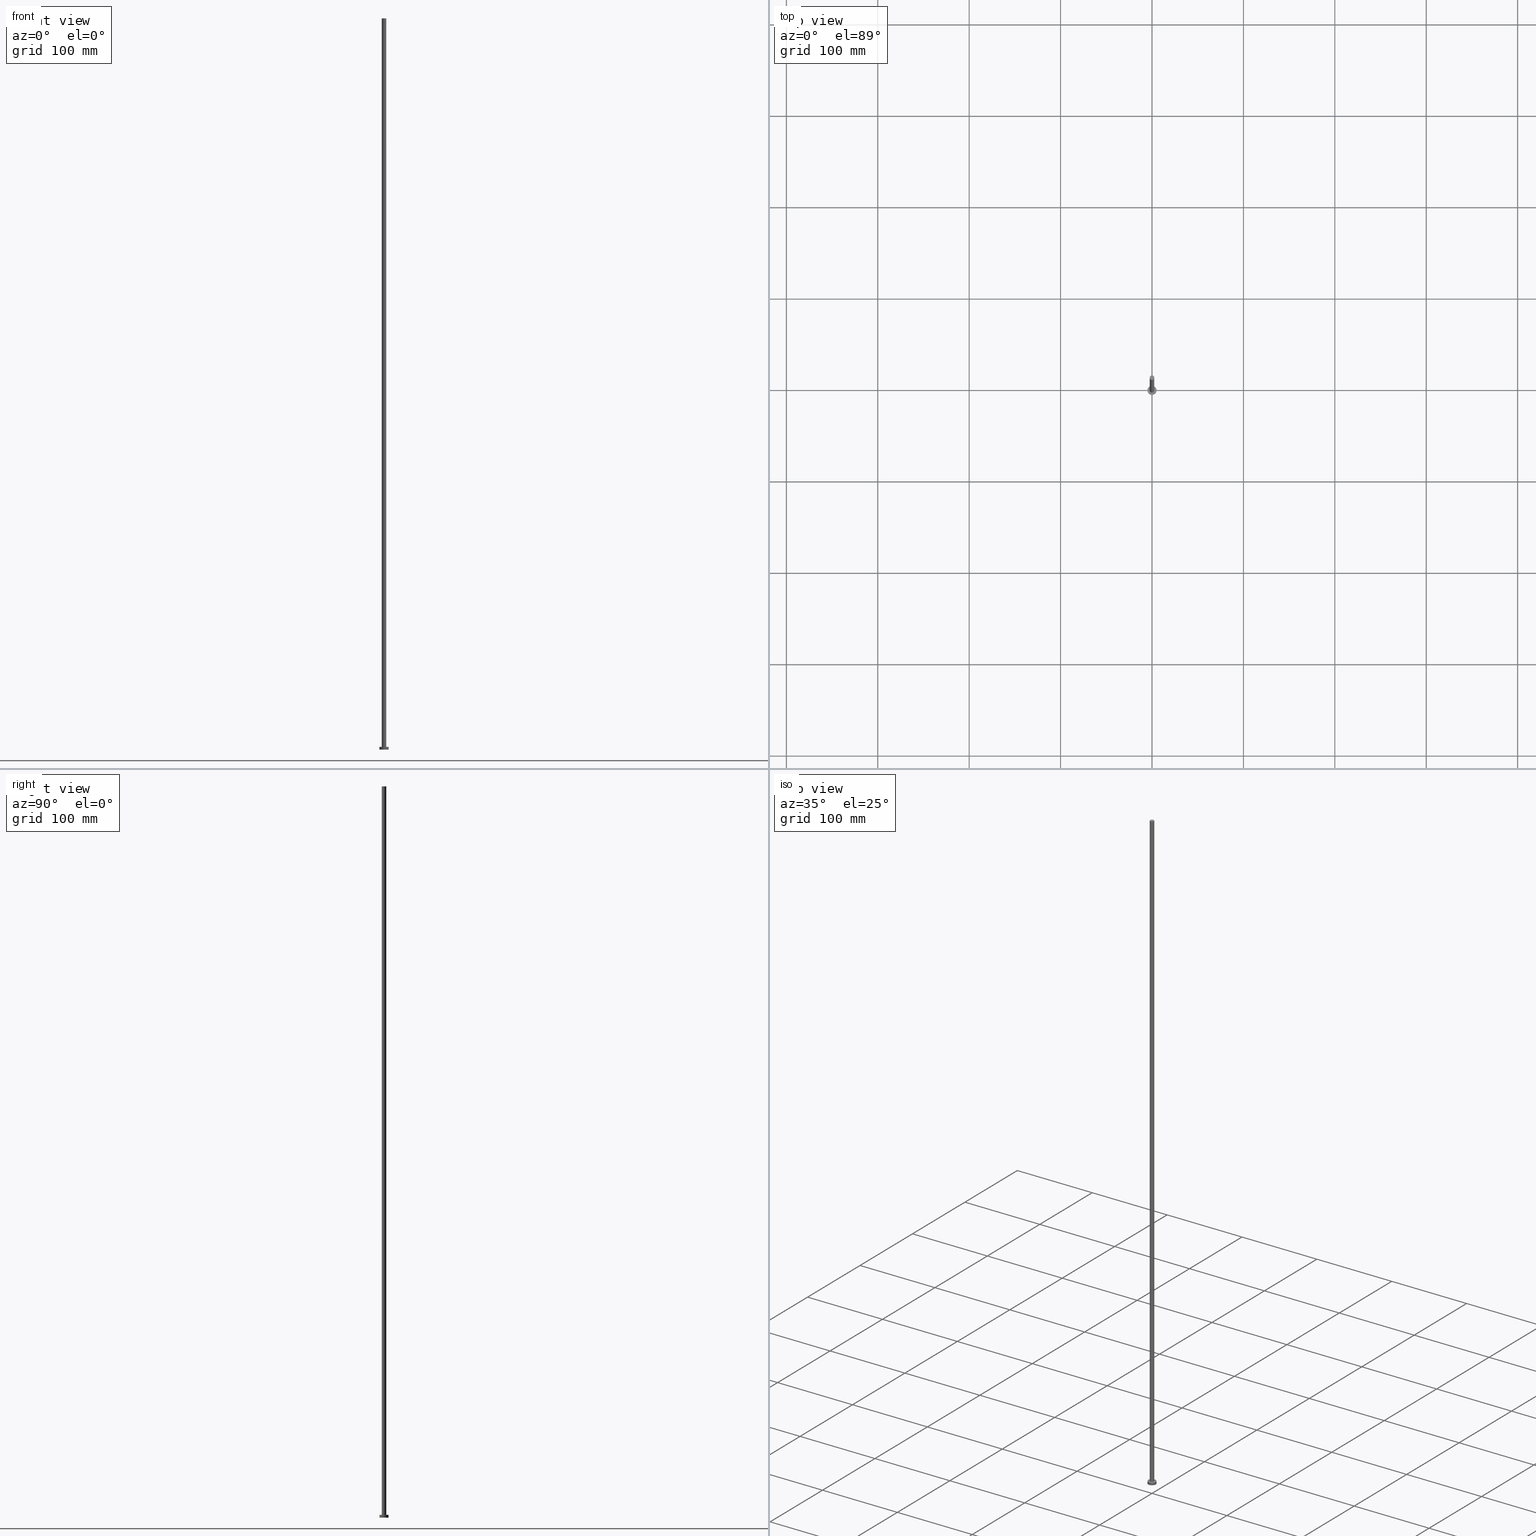
[diagram: canonical four-view strip — front | top / right | iso, engineering-drawing reading convention]
A machine part, canonical four-view strip (front | top / right | iso — engineering-drawing reading convention). The complete STEP part file that produces these views, byte-faithful:
ISO-10303-21;
HEADER;
FILE_DESCRIPTION (( 'STEP AP203' ),
    '1' );
FILE_NAME ('afb6.STEP',
    '2026-02-06T12:41:12',
    ( '' ),
    ( '' ),
    'SwSTEP 2.0',
    'SolidWorks 2019',
    '' );
FILE_SCHEMA (( 'CONFIG_CONTROL_DESIGN' ));
ENDSEC;

DATA;
#1 = ORIENTED_EDGE ( 'NONE', *, *, #185, .T. ) ;
#2 = AXIS2_PLACEMENT_3D ( 'NONE', #191, #85, #42 ) ;
#3 = ADVANCED_FACE ( 'NONE', ( #188 ), #149, .T. ) ;
#4 = CARTESIAN_POINT ( 'NONE',  ( -5.000000000000000000, 0.000000000000000000, 0.000000000000000000 ) ) ;
#5 = DIRECTION ( 'NONE',  ( -0.000000000000000000, -0.000000000000000000, -1.000000000000000000 ) ) ;
#6 = DIRECTION ( 'NONE',  ( 0.000000000000000000, 0.000000000000000000, 1.000000000000000000 ) ) ;
#7 = FACE_OUTER_BOUND ( 'NONE', #55, .T. ) ;
#8 = CC_DESIGN_SECURITY_CLASSIFICATION ( #137, ( #72 ) ) ;
#9 = EDGE_CURVE ( 'NONE', #120, #87, #92, .T. ) ;
#10 = DIRECTION ( 'NONE',  ( 0.000000000000000000, 0.000000000000000000, 1.000000000000000000 ) ) ;
#11 = DIRECTION ( 'NONE',  ( 0.000000000000000000, 0.000000000000000000, 1.000000000000000000 ) ) ;
#12 = DIRECTION ( 'NONE',  ( 0.000000000000000000, 0.000000000000000000, 1.000000000000000000 ) ) ;
#13 = COORDINATED_UNIVERSAL_TIME_OFFSET ( 1, 0, .AHEAD. ) ;
#14 = CC_DESIGN_PERSON_AND_ORGANIZATION_ASSIGNMENT ( #140, #125, ( #72 ) ) ;
#15 = DIRECTION ( 'NONE',  ( 0.000000000000000000, 0.000000000000000000, 1.000000000000000000 ) ) ;
#16 = CC_DESIGN_APPROVAL ( #54, ( #72 ) ) ;
#17 = EDGE_LOOP ( 'NONE', ( #243, #244, #220, #76 ) ) ;
#18 = PRODUCT ( 'afb6', 'afb6', '', ( #139 ) ) ;
#19 = ORIENTED_EDGE ( 'NONE', *, *, #32, .F. ) ;
#20 = PERSON_AND_ORGANIZATION ( #222, #134 ) ;
#21 = APPROVAL_PERSON_ORGANIZATION ( #36, #143, #165 ) ;
#22 = DATE_TIME_ROLE ( 'classification_date' ) ;
#23 = CARTESIAN_POINT ( 'NONE',  ( 0.000000000000000000, 0.000000000000000000, 3.000000000000000000 ) ) ;
#24 = ADVANCED_FACE ( 'NONE', ( #223 ), #209, .T. ) ;
#25 = LINE ( 'NONE', #152, #234 ) ;
#26 = CARTESIAN_POINT ( 'NONE',  ( 0.000000000000000000, 0.000000000000000000, 800.0000000000000000 ) ) ;
#27 = CARTESIAN_POINT ( 'NONE',  ( 0.000000000000000000, 0.000000000000000000, 800.0000000000000000 ) ) ;
#28 = CARTESIAN_POINT ( 'NONE',  ( 0.000000000000000000, 0.000000000000000000, 3.000000000000000000 ) ) ;
#29 = PRODUCT_DEFINITION_SHAPE ( 'NONE', 'NONE',  #129 ) ;
#30 = CARTESIAN_POINT ( 'NONE',  ( 0.000000000000000000, 0.000000000000000000, 0.000000000000000000 ) ) ;
#31 = AXIS2_PLACEMENT_3D ( 'NONE', #179, #68, #232 ) ;
#32 = EDGE_CURVE ( 'NONE', #154, #120, #25, .T. ) ;
#33 = VERTEX_POINT ( 'NONE', #249 ) ;
#34 = COORDINATED_UNIVERSAL_TIME_OFFSET ( 1, 0, .AHEAD. ) ;
#35 = VERTEX_POINT ( 'NONE', #105 ) ;
#36 = PERSON_AND_ORGANIZATION ( #222, #134 ) ;
#37 = EDGE_LOOP ( 'NONE', ( #46, #155 ) ) ;
#38 = ORIENTED_EDGE ( 'NONE', *, *, #49, .F. ) ;
#39 = CARTESIAN_POINT ( 'NONE',  ( 0.000000000000000000, 0.000000000000000000, 800.0000000000000000 ) ) ;
#40 = PLANE ( 'NONE',  #135 ) ;
#41 = CARTESIAN_POINT ( 'NONE',  ( 0.000000000000000000, 0.000000000000000000, 0.000000000000000000 ) ) ;
#42 = DIRECTION ( 'NONE',  ( 1.000000000000000000, 0.000000000000000000, 0.000000000000000000 ) ) ;
#43 = CYLINDRICAL_SURFACE ( 'NONE', #79, 2.500000000000000000 ) ;
#44 = DIRECTION ( 'NONE',  ( -0.000000000000000000, -0.000000000000000000, -1.000000000000000000 ) ) ;
#45 = FACE_OUTER_BOUND ( 'NONE', #37, .T. ) ;
#46 = ORIENTED_EDGE ( 'NONE', *, *, #147, .T. ) ;
#47 = AXIS2_PLACEMENT_3D ( 'NONE', #39, #128, #173 ) ;
#48 = CALENDAR_DATE ( 2026, 6, 2 ) ;
#49 = EDGE_CURVE ( 'NONE', #35, #239, #101, .T. ) ;
#50 = PERSON_AND_ORGANIZATION_ROLE ( 'creator' ) ;
#51 = APPROVAL_PERSON_ORGANIZATION ( #111, #199, #196 ) ;
#52 = EDGE_CURVE ( 'NONE', #35, #126, #56, .T. ) ;
#53 = LOCAL_TIME ( 13, 41, 12.00000000000000000, #193 ) ;
#54 = APPROVAL ( #162, 'NEUR�EN�' ) ;
#55 = EDGE_LOOP ( 'NONE', ( #141, #166 ) ) ;
#56 = CIRCLE ( 'NONE', #96, 2.500000000000000000 ) ;
#57 = EDGE_LOOP ( 'NONE', ( #144, #254 ) ) ;
#58 = DIRECTION ( 'NONE',  ( 1.000000000000000000, 0.000000000000000000, 0.000000000000000000 ) ) ;
#59 = DIRECTION ( 'NONE',  ( -0.000000000000000000, -0.000000000000000000, -1.000000000000000000 ) ) ;
#60 = DIRECTION ( 'NONE',  ( -0.000000000000000000, -0.000000000000000000, -1.000000000000000000 ) ) ;
#61 = EDGE_LOOP ( 'NONE', ( #77, #100 ) ) ;
#62 = DIRECTION ( 'NONE',  ( -0.000000000000000000, -0.000000000000000000, -1.000000000000000000 ) ) ;
#63 = CARTESIAN_POINT ( 'NONE',  ( 0.000000000000000000, 0.000000000000000000, 3.000000000000000000 ) ) ;
#64 = CARTESIAN_POINT ( 'NONE',  ( 5.000000000000000000, 6.123233995736766282E-16, 0.000000000000000000 ) ) ;
#65 = DIRECTION ( 'NONE',  ( 1.000000000000000000, 0.000000000000000000, 0.000000000000000000 ) ) ;
#66 = CC_DESIGN_APPROVAL ( #199, ( #129 ) ) ;
#67 = APPLICATION_PROTOCOL_DEFINITION ( 'international standard', 'config_control_design', 1994, #238 ) ;
#68 = DIRECTION ( 'NONE',  ( 0.000000000000000000, 0.000000000000000000, 1.000000000000000000 ) ) ;
#69 = COORDINATED_UNIVERSAL_TIME_OFFSET ( 1, 0, .AHEAD. ) ;
#70 = CALENDAR_DATE ( 2026, 6, 2 ) ;
#71 = CC_DESIGN_DATE_AND_TIME_ASSIGNMENT ( #240, #22, ( #137 ) ) ;
#72 = PRODUCT_DEFINITION_FORMATION_WITH_SPECIFIED_SOURCE ( 'LIBOVOLN�', '', #18, .NOT_KNOWN. ) ;
#73 = EDGE_LOOP ( 'NONE', ( #200, #184, #1, #202 ) ) ;
#74 = MANIFOLD_SOLID_BREP ( 'P�idat vysunut�m3', #217 ) ;
#75 = UNCERTAINTY_MEASURE_WITH_UNIT (LENGTH_MEASURE( 1.000000000000000082E-05 ), #247, 'distance_accuracy_value', 'NONE');
#76 = ORIENTED_EDGE ( 'NONE', *, *, #235, .F. ) ;
#77 = ORIENTED_EDGE ( 'NONE', *, *, #142, .T. ) ;
#78 = SHAPE_DEFINITION_REPRESENTATION ( #29, #117 ) ;
#79 = AXIS2_PLACEMENT_3D ( 'NONE', #189, #5, #132 ) ;
#80 = AXIS2_PLACEMENT_3D ( 'NONE', #109, #6, #225 ) ;
#81 = DIRECTION ( 'NONE',  ( 0.000000000000000000, 0.000000000000000000, 1.000000000000000000 ) ) ;
#82 = CYLINDRICAL_SURFACE ( 'NONE', #216, 2.500000000000000000 ) ;
#83 = DIRECTION ( 'NONE',  ( 1.000000000000000000, 0.000000000000000000, -0.000000000000000000 ) ) ;
#84 = CARTESIAN_POINT ( 'NONE',  ( -5.000000000000000000, 0.000000000000000000, 3.000000000000000000 ) ) ;
#85 = DIRECTION ( 'NONE',  ( 0.000000000000000000, 0.000000000000000000, 1.000000000000000000 ) ) ;
#86 = LOCAL_TIME ( 13, 41, 12.00000000000000000, #69 ) ;
#87 = VERTEX_POINT ( 'NONE', #4 ) ;
#88 = DIRECTION ( 'NONE',  ( 1.000000000000000000, 0.000000000000000000, 0.000000000000000000 ) ) ;
#89 = DIRECTION ( 'NONE',  ( 0.000000000000000000, 0.000000000000000000, 1.000000000000000000 ) ) ;
#90 =( NAMED_UNIT ( * ) PLANE_ANGLE_UNIT ( ) SI_UNIT ( $, .RADIAN. ) );
#91 = DATE_AND_TIME ( #70, #212 ) ;
#92 = CIRCLE ( 'NONE', #138, 5.000000000000000000 ) ;
#93 = APPROVAL_STATUS ( 'not_yet_approved' ) ;
#94 = ADVANCED_FACE ( 'NONE', ( #204 ), #40, .T. ) ;
#95 = APPROVAL_ROLE ( '' ) ;
#96 = AXIS2_PLACEMENT_3D ( 'NONE', #27, #89, #58 ) ;
#97 = EDGE_LOOP ( 'NONE', ( #38, #164, #230, #145 ) ) ;
#98 = DATE_AND_TIME ( #122, #124 ) ;
#99 = VERTEX_POINT ( 'NONE', #131 ) ;
#100 = ORIENTED_EDGE ( 'NONE', *, *, #52, .T. ) ;
#101 = LINE ( 'NONE', #242, #104 ) ;
#102 = LINE ( 'NONE', #133, #178 ) ;
#103 = LOCAL_TIME ( 13, 41, 12.00000000000000000, #34 ) ;
#104 = VECTOR ( 'NONE', #60, 1000.000000000000000 ) ;
#105 = CARTESIAN_POINT ( 'NONE',  ( 2.500000000000000000, 3.061616997868383141E-16, 800.0000000000000000 ) ) ;
#106 = FACE_OUTER_BOUND ( 'NONE', #73, .T. ) ;
#107 = CC_DESIGN_DATE_AND_TIME_ASSIGNMENT ( #159, #214, ( #129 ) ) ;
#108 = ORIENTED_EDGE ( 'NONE', *, *, #255, .T. ) ;
#109 = CARTESIAN_POINT ( 'NONE',  ( 0.000000000000000000, 0.000000000000000000, 3.000000000000000000 ) ) ;
#110 = DIRECTION ( 'NONE',  ( -1.000000000000000000, 0.000000000000000000, 0.000000000000000000 ) ) ;
#111 = PERSON_AND_ORGANIZATION ( #222, #134 ) ;
#112 = CARTESIAN_POINT ( 'NONE',  ( 0.000000000000000000, 0.000000000000000000, 0.000000000000000000 ) ) ;
#113 = PERSON_AND_ORGANIZATION_ROLE ( 'creator' ) ;
#114 = CIRCLE ( 'NONE', #167, 5.000000000000000000 ) ;
#115 = FACE_OUTER_BOUND ( 'NONE', #97, .T. ) ;
#116 = PERSON_AND_ORGANIZATION ( #222, #134 ) ;
#117 = ADVANCED_BREP_SHAPE_REPRESENTATION ( 'afb6', ( #74, #252 ), #245 ) ;
#118 = PRODUCT_RELATED_PRODUCT_CATEGORY ( 'detail', '', ( #18 ) ) ;
#119 = PERSON_AND_ORGANIZATION_ROLE ( 'design_owner' ) ;
#120 = VERTEX_POINT ( 'NONE', #64 ) ;
#121 = APPROVAL_STATUS ( 'not_yet_approved' ) ;
#122 = CALENDAR_DATE ( 2026, 6, 2 ) ;
#123 = CC_DESIGN_PERSON_AND_ORGANIZATION_ASSIGNMENT ( #20, #203, ( #137 ) ) ;
#124 = LOCAL_TIME ( 13, 41, 12.00000000000000000, #221 ) ;
#125 = PERSON_AND_ORGANIZATION_ROLE ( 'design_supplier' ) ;
#126 = VERTEX_POINT ( 'NONE', #146 ) ;
#127 = DIRECTION ( 'NONE',  ( -1.000000000000000000, 0.000000000000000000, 0.000000000000000000 ) ) ;
#128 = DIRECTION ( 'NONE',  ( 0.000000000000000000, 0.000000000000000000, 1.000000000000000000 ) ) ;
#129 = PRODUCT_DEFINITION ( 'NEZN�M�', '', #72, #237 ) ;
#130 = DIRECTION ( 'NONE',  ( -1.000000000000000000, 0.000000000000000000, 0.000000000000000000 ) ) ;
#131 = CARTESIAN_POINT ( 'NONE',  ( -2.500000000000000000, 0.000000000000000000, 3.000000000000000000 ) ) ;
#132 = DIRECTION ( 'NONE',  ( -1.000000000000000000, 0.000000000000000000, 0.000000000000000000 ) ) ;
#133 = CARTESIAN_POINT ( 'NONE',  ( -2.500000000000000000, 0.000000000000000000, 800.0000000000000000 ) ) ;
#134 = ORGANIZATION ( 'NEUR�EN�', 'NEUR�EN�', '' ) ;
#135 = AXIS2_PLACEMENT_3D ( 'NONE', #228, #10, #83 ) ;
#136 = EDGE_CURVE ( 'NONE', #154, #33, #207, .T. ) ;
#137 = SECURITY_CLASSIFICATION ( '', '', #219 ) ;
#138 = AXIS2_PLACEMENT_3D ( 'NONE', #192, #81, #176 ) ;
#139 = MECHANICAL_CONTEXT ( 'NONE', #238, 'mechanical' ) ;
#140 = PERSON_AND_ORGANIZATION ( #222, #134 ) ;
#141 = ORIENTED_EDGE ( 'NONE', *, *, #255, .F. ) ;
#142 = EDGE_CURVE ( 'NONE', #126, #35, #158, .T. ) ;
#143 = APPROVAL ( #121, 'NEUR�EN�' ) ;
#144 = ORIENTED_EDGE ( 'NONE', *, *, #170, .F. ) ;
#145 = ORIENTED_EDGE ( 'NONE', *, *, #170, .T. ) ;
#146 = CARTESIAN_POINT ( 'NONE',  ( -2.500000000000000000, 0.000000000000000000, 800.0000000000000000 ) ) ;
#147 = EDGE_CURVE ( 'NONE', #33, #154, #187, .T. ) ;
#148 = CARTESIAN_POINT ( 'NONE',  ( 0.000000000000000000, 0.000000000000000000, 3.000000000000000000 ) ) ;
#149 = CYLINDRICAL_SURFACE ( 'NONE', #227, 5.000000000000000000 ) ;
#150 = DIRECTION ( 'NONE',  ( -0.000000000000000000, -0.000000000000000000, -1.000000000000000000 ) ) ;
#151 = CIRCLE ( 'NONE', #31, 2.500000000000000000 ) ;
#152 = CARTESIAN_POINT ( 'NONE',  ( 5.000000000000000000, 6.123233995736766282E-16, 3.000000000000000000 ) ) ;
#153 = PLANE ( 'NONE',  #241 ) ;
#154 = VERTEX_POINT ( 'NONE', #246 ) ;
#155 = ORIENTED_EDGE ( 'NONE', *, *, #136, .T. ) ;
#156 = DATE_AND_TIME ( #48, #86 ) ;
#157 = CC_DESIGN_APPROVAL ( #143, ( #137 ) ) ;
#158 = CIRCLE ( 'NONE', #47, 2.500000000000000000 ) ;
#159 = DATE_AND_TIME ( #181, #53 ) ;
#160 = PERSON_AND_ORGANIZATION ( #222, #134 ) ;
#161 = CC_DESIGN_PERSON_AND_ORGANIZATION_ASSIGNMENT ( #160, #113, ( #129 ) ) ;
#162 = APPROVAL_STATUS ( 'not_yet_approved' ) ;
#163 = APPROVAL_PERSON_ORGANIZATION ( #195, #54, #95 ) ;
#164 = ORIENTED_EDGE ( 'NONE', *, *, #142, .F. ) ;
#165 = APPROVAL_ROLE ( '' ) ;
#166 = ORIENTED_EDGE ( 'NONE', *, *, #9, .F. ) ;
#167 = AXIS2_PLACEMENT_3D ( 'NONE', #41, #11, #88 ) ;
#168 = AXIS2_PLACEMENT_3D ( 'NONE', #28, #172, #190 ) ;
#169 = AXIS2_PLACEMENT_3D ( 'NONE', #23, #208, #110 ) ;
#170 = EDGE_CURVE ( 'NONE', #99, #239, #231, .T. ) ;
#171 = DIRECTION ( 'NONE',  ( -0.000000000000000000, -0.000000000000000000, -1.000000000000000000 ) ) ;
#172 = DIRECTION ( 'NONE',  ( 0.000000000000000000, 0.000000000000000000, 1.000000000000000000 ) ) ;
#173 = DIRECTION ( 'NONE',  ( 1.000000000000000000, 0.000000000000000000, 0.000000000000000000 ) ) ;
#174 = CC_DESIGN_PERSON_AND_ORGANIZATION_ASSIGNMENT ( #233, #50, ( #72 ) ) ;
#175 = PLANE ( 'NONE',  #197 ) ;
#176 = DIRECTION ( 'NONE',  ( 1.000000000000000000, 0.000000000000000000, 0.000000000000000000 ) ) ;
#177 = APPROVAL_DATE_TIME ( #91, #54 ) ;
#178 = VECTOR ( 'NONE', #59, 1000.000000000000000 ) ;
#179 = CARTESIAN_POINT ( 'NONE',  ( 0.000000000000000000, 0.000000000000000000, 3.000000000000000000 ) ) ;
#180 = ADVANCED_FACE ( 'NONE', ( #7 ), #175, .F. ) ;
#181 = CALENDAR_DATE ( 2026, 6, 2 ) ;
#182 = DIRECTION ( 'NONE',  ( 1.000000000000000000, 0.000000000000000000, -0.000000000000000000 ) ) ;
#183 = APPLICATION_PROTOCOL_DEFINITION ( 'international standard', 'config_control_design', 1994, #251 ) ;
#184 = ORIENTED_EDGE ( 'NONE', *, *, #49, .T. ) ;
#185 = EDGE_CURVE ( 'NONE', #239, #99, #151, .T. ) ;
#186 = ORIENTED_EDGE ( 'NONE', *, *, #147, .F. ) ;
#187 = CIRCLE ( 'NONE', #80, 5.000000000000000000 ) ;
#188 = FACE_OUTER_BOUND ( 'NONE', #218, .T. ) ;
#189 = CARTESIAN_POINT ( 'NONE',  ( 0.000000000000000000, 0.000000000000000000, 800.0000000000000000 ) ) ;
#190 = DIRECTION ( 'NONE',  ( 1.000000000000000000, 0.000000000000000000, 0.000000000000000000 ) ) ;
#191 = CARTESIAN_POINT ( 'NONE',  ( 0.000000000000000000, 0.000000000000000000, 3.000000000000000000 ) ) ;
#192 = CARTESIAN_POINT ( 'NONE',  ( 0.000000000000000000, 0.000000000000000000, 0.000000000000000000 ) ) ;
#193 = COORDINATED_UNIVERSAL_TIME_OFFSET ( 1, 0, .AHEAD. ) ;
#194 = ADVANCED_FACE ( 'NONE', ( #115 ), #82, .T. ) ;
#195 = PERSON_AND_ORGANIZATION ( #222, #134 ) ;
#196 = APPROVAL_ROLE ( '' ) ;
#197 = AXIS2_PLACEMENT_3D ( 'NONE', #112, #12, #182 ) ;
#198 = ORIENTED_EDGE ( 'NONE', *, *, #235, .T. ) ;
#199 = APPROVAL ( #93, 'NEUR�EN�' ) ;
#200 = ORIENTED_EDGE ( 'NONE', *, *, #52, .F. ) ;
#201 = APPROVAL_DATE_TIME ( #98, #143 ) ;
#202 = ORIENTED_EDGE ( 'NONE', *, *, #211, .F. ) ;
#203 = PERSON_AND_ORGANIZATION_ROLE ( 'classification_officer' ) ;
#204 = FACE_OUTER_BOUND ( 'NONE', #61, .T. ) ;
#205 = LINE ( 'NONE', #84, #236 ) ;
#206 = DIRECTION ( 'NONE',  ( 1.000000000000000000, 0.000000000000000000, -0.000000000000000000 ) ) ;
#207 = CIRCLE ( 'NONE', #168, 5.000000000000000000 ) ;
#208 = DIRECTION ( 'NONE',  ( -0.000000000000000000, -0.000000000000000000, -1.000000000000000000 ) ) ;
#209 = CYLINDRICAL_SURFACE ( 'NONE', #169, 5.000000000000000000 ) ;
#210 =( NAMED_UNIT ( * ) SI_UNIT ( $, .STERADIAN. ) SOLID_ANGLE_UNIT ( ) );
#211 = EDGE_CURVE ( 'NONE', #126, #99, #102, .T. ) ;
#212 = LOCAL_TIME ( 13, 41, 12.00000000000000000, #13 ) ;
#213 = CC_DESIGN_PERSON_AND_ORGANIZATION_ASSIGNMENT ( #116, #119, ( #18 ) ) ;
#214 = DATE_TIME_ROLE ( 'creation_date' ) ;
#215 = CALENDAR_DATE ( 2026, 6, 2 ) ;
#216 = AXIS2_PLACEMENT_3D ( 'NONE', #26, #150, #127 ) ;
#217 = CLOSED_SHELL ( 'NONE', ( #253, #24, #3, #248, #180, #194, #94 ) ) ;
#218 = EDGE_LOOP ( 'NONE', ( #19, #186, #198, #108 ) ) ;
#219 = SECURITY_CLASSIFICATION_LEVEL ( 'unclassified' ) ;
#220 = ORIENTED_EDGE ( 'NONE', *, *, #9, .T. ) ;
#221 = COORDINATED_UNIVERSAL_TIME_OFFSET ( 1, 0, .AHEAD. ) ;
#222 = PERSON ( 'NEUR�EN�', 'NEUR�EN�', 'NEUR�EN�', ('NEUR�EN�'), ('NEUR�EN�'), ('NEUR�EN�') ) ;
#223 = FACE_OUTER_BOUND ( 'NONE', #17, .T. ) ;
#224 = DIRECTION ( 'NONE',  ( 0.000000000000000000, 0.000000000000000000, 1.000000000000000000 ) ) ;
#225 = DIRECTION ( 'NONE',  ( 1.000000000000000000, 0.000000000000000000, 0.000000000000000000 ) ) ;
#226 = CARTESIAN_POINT ( 'NONE',  ( 2.500000000000000000, 3.061616997868383141E-16, 3.000000000000000000 ) ) ;
#227 = AXIS2_PLACEMENT_3D ( 'NONE', #63, #44, #130 ) ;
#228 = CARTESIAN_POINT ( 'NONE',  ( 0.000000000000000000, 0.000000000000000000, 800.0000000000000000 ) ) ;
#229 = FACE_BOUND ( 'NONE', #57, .T. ) ;
#230 = ORIENTED_EDGE ( 'NONE', *, *, #211, .T. ) ;
#231 = CIRCLE ( 'NONE', #2, 2.500000000000000000 ) ;
#232 = DIRECTION ( 'NONE',  ( 1.000000000000000000, 0.000000000000000000, 0.000000000000000000 ) ) ;
#233 = PERSON_AND_ORGANIZATION ( #222, #134 ) ;
#234 = VECTOR ( 'NONE', #171, 1000.000000000000000 ) ;
#235 = EDGE_CURVE ( 'NONE', #33, #87, #205, .T. ) ;
#236 = VECTOR ( 'NONE', #62, 1000.000000000000000 ) ;
#237 = DESIGN_CONTEXT ( 'detailed design', #251, 'design' ) ;
#238 = APPLICATION_CONTEXT ( 'configuration controlled 3d designs of mechanical parts and assemblies' ) ;
#239 = VERTEX_POINT ( 'NONE', #226 ) ;
#240 = DATE_AND_TIME ( #215, #103 ) ;
#241 = AXIS2_PLACEMENT_3D ( 'NONE', #148, #224, #206 ) ;
#242 = CARTESIAN_POINT ( 'NONE',  ( 2.500000000000000000, 3.061616997868383141E-16, 800.0000000000000000 ) ) ;
#243 = ORIENTED_EDGE ( 'NONE', *, *, #136, .F. ) ;
#244 = ORIENTED_EDGE ( 'NONE', *, *, #32, .T. ) ;
#245 =( GEOMETRIC_REPRESENTATION_CONTEXT ( 3 ) GLOBAL_UNCERTAINTY_ASSIGNED_CONTEXT ( ( #75 ) ) GLOBAL_UNIT_ASSIGNED_CONTEXT ( ( #247, #90, #210 ) ) REPRESENTATION_CONTEXT ( 'NONE', 'WORKASPACE' ) );
#246 = CARTESIAN_POINT ( 'NONE',  ( 5.000000000000000000, 6.123233995736766282E-16, 3.000000000000000000 ) ) ;
#247 =( LENGTH_UNIT ( ) NAMED_UNIT ( * ) SI_UNIT ( .MILLI., .METRE. ) );
#248 = ADVANCED_FACE ( 'NONE', ( #229, #45 ), #153, .T. ) ;
#249 = CARTESIAN_POINT ( 'NONE',  ( -5.000000000000000000, 0.000000000000000000, 3.000000000000000000 ) ) ;
#250 = APPROVAL_DATE_TIME ( #156, #199 ) ;
#251 = APPLICATION_CONTEXT ( 'configuration controlled 3d designs of mechanical parts and assemblies' ) ;
#252 = AXIS2_PLACEMENT_3D ( 'NONE', #30, #15, #65 ) ;
#253 = ADVANCED_FACE ( 'NONE', ( #106 ), #43, .T. ) ;
#254 = ORIENTED_EDGE ( 'NONE', *, *, #185, .F. ) ;
#255 = EDGE_CURVE ( 'NONE', #87, #120, #114, .T. ) ;
ENDSEC;
END-ISO-10303-21;
